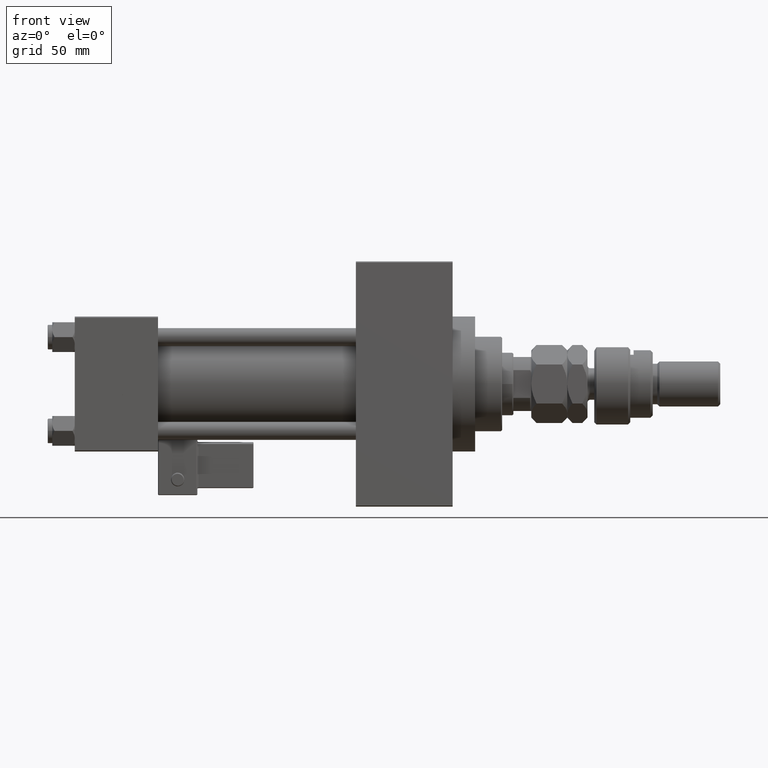
[diagram: clean part render]
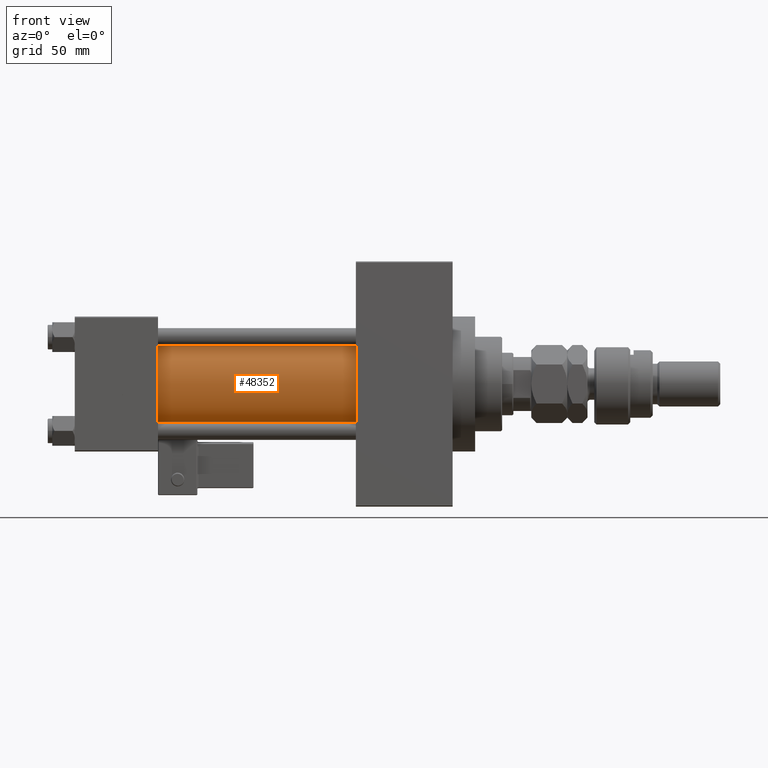
[diagram: same view with one face highlighted and labeled with its STEP entity id]
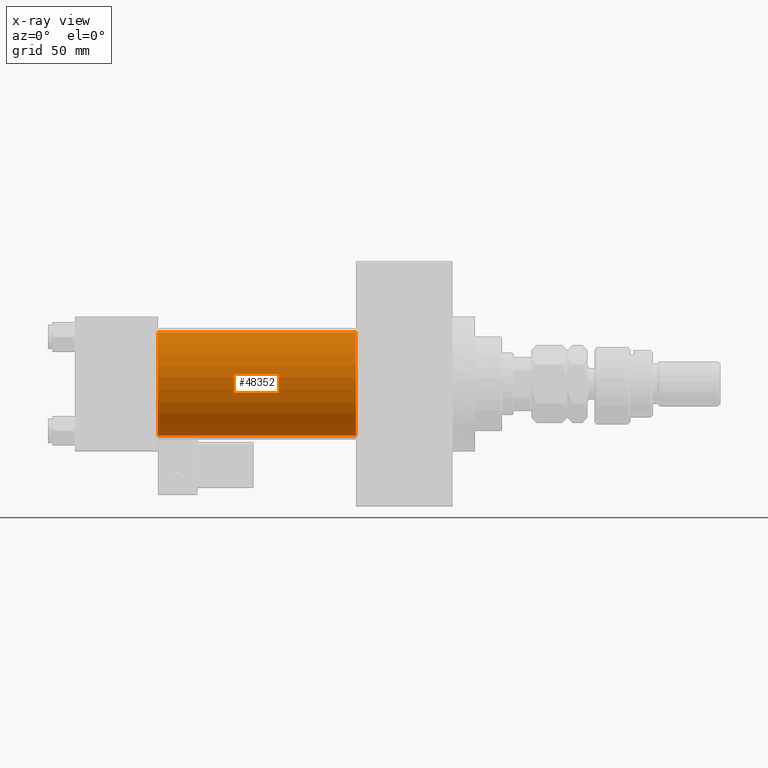
[diagram: x-ray of the same camera — body ghosted, the highlighted face saturated]
A machine part, front view. The second image highlights one B-rep face of the part: STEP entity #48352.
The next image is the same camera in x-ray: the body ghosted, the highlighted face saturated — about 0% of this face is hidden behind the body in this view.
In plain terms, the highlighted cylindrical surface (partial cylindrical patch) has radius 23 mm, axis along (-1, -0, -0).
Its self-contained STEP definition (entity closure, byte-faithful):
#623 = CARTESIAN_POINT ( 'NONE',  ( 125.0000000000000000, 2.146024240737016609E-16, -23.00000000000000000 ) ) ;
#626 = VECTOR ( 'NONE', #9377, 1000.000000000000000 ) ;
#1094 = CARTESIAN_POINT ( 'NONE',  ( 125.0000000000000000, 2.146024240737016609E-16, -23.00000000000000000 ) ) ;
#2289 = CARTESIAN_POINT ( 'NONE',  ( 125.0000000000000000, -2.602085213965210642E-15, 23.00000000000000000 ) ) ;
#3118 = EDGE_LOOP ( 'NONE', ( #53641, #28588, #38084, #34016 ) ) ;
#6872 = EDGE_CURVE ( 'NONE', #19780, #53305, #20497, .T. ) ;
#7439 = CARTESIAN_POINT ( 'NONE',  ( 37.00000000000000711, 2.146024240737016609E-16, -23.00000000000000000 ) ) ;
#9377 = DIRECTION ( 'NONE',  ( -1.000000000000000000, -0.000000000000000000, -0.000000000000000000 ) ) ;
#10006 = DIRECTION ( 'NONE',  ( -1.000000000000000000, -0.000000000000000000, -0.000000000000000000 ) ) ;
#11237 = EDGE_CURVE ( 'NONE', #37843, #53305, #30370, .T. ) ;
#14843 = DIRECTION ( 'NONE',  ( 1.000000000000000000, 0.000000000000000000, 0.000000000000000000 ) ) ;
#15397 = CARTESIAN_POINT ( 'NONE',  ( 125.0000000000000000, -2.602085213965210642E-15, 0.000000000000000000 ) ) ;
#17203 = CIRCLE ( 'NONE', #49820, 23.00000000000000000 ) ;
#17250 = CARTESIAN_POINT ( 'NONE',  ( 125.0000000000000000, -2.602085213965210642E-15, 0.000000000000000000 ) ) ;
#17857 = AXIS2_PLACEMENT_3D ( 'NONE', #48802, #19276, #27572 ) ;
#19276 = DIRECTION ( 'NONE',  ( 1.000000000000000000, -0.000000000000000000, 0.000000000000000000 ) ) ;
#19780 = VERTEX_POINT ( 'NONE', #30384 ) ;
#20497 = CIRCLE ( 'NONE', #17857, 23.00000000000000000 ) ;
#21121 = DIRECTION ( 'NONE',  ( 0.000000000000000000, 0.000000000000000000, 1.000000000000000000 ) ) ;
#23415 = DIRECTION ( 'NONE',  ( 0.000000000000000000, 0.000000000000000000, -1.000000000000000000 ) ) ;
#23783 = EDGE_CURVE ( 'NONE', #26830, #19780, #30174, .T. ) ;
#25812 = DIRECTION ( 'NONE',  ( -1.000000000000000000, -0.000000000000000000, -0.000000000000000000 ) ) ;
#26830 = VERTEX_POINT ( 'NONE', #2289 ) ;
#26850 = CARTESIAN_POINT ( 'NONE',  ( 125.0000000000000000, -2.602085213965210642E-15, 23.00000000000000000 ) ) ;
#27572 = DIRECTION ( 'NONE',  ( 0.000000000000000000, 0.000000000000000000, 1.000000000000000000 ) ) ;
#28588 = ORIENTED_EDGE ( 'NONE', *, *, #31440, .F. ) ;
#30174 = LINE ( 'NONE', #26850, #52148 ) ;
#30370 = LINE ( 'NONE', #1094, #626 ) ;
#30384 = CARTESIAN_POINT ( 'NONE',  ( 37.00000000000000711, -2.602085213965210642E-15, 23.00000000000000000 ) ) ;
#31440 = EDGE_CURVE ( 'NONE', #26830, #37843, #17203, .T. ) ;
#34016 = ORIENTED_EDGE ( 'NONE', *, *, #6872, .T. ) ;
#34072 = FACE_OUTER_BOUND ( 'NONE', #3118, .T. ) ;
#37843 = VERTEX_POINT ( 'NONE', #623 ) ;
#38084 = ORIENTED_EDGE ( 'NONE', *, *, #23783, .T. ) ;
#45950 = CYLINDRICAL_SURFACE ( 'NONE', #49496, 23.00000000000000000 ) ;
#48352 = ADVANCED_FACE ( 'NONE', ( #34072 ), #45950, .T. ) ;
#48802 = CARTESIAN_POINT ( 'NONE',  ( 37.00000000000000711, -2.602085213965210642E-15, 0.000000000000000000 ) ) ;
#49496 = AXIS2_PLACEMENT_3D ( 'NONE', #17250, #25812, #21121 ) ;
#49820 = AXIS2_PLACEMENT_3D ( 'NONE', #15397, #14843, #23415 ) ;
#52148 = VECTOR ( 'NONE', #10006, 1000.000000000000000 ) ;
#53305 = VERTEX_POINT ( 'NONE', #7439 ) ;
#53641 = ORIENTED_EDGE ( 'NONE', *, *, #11237, .F. ) ;